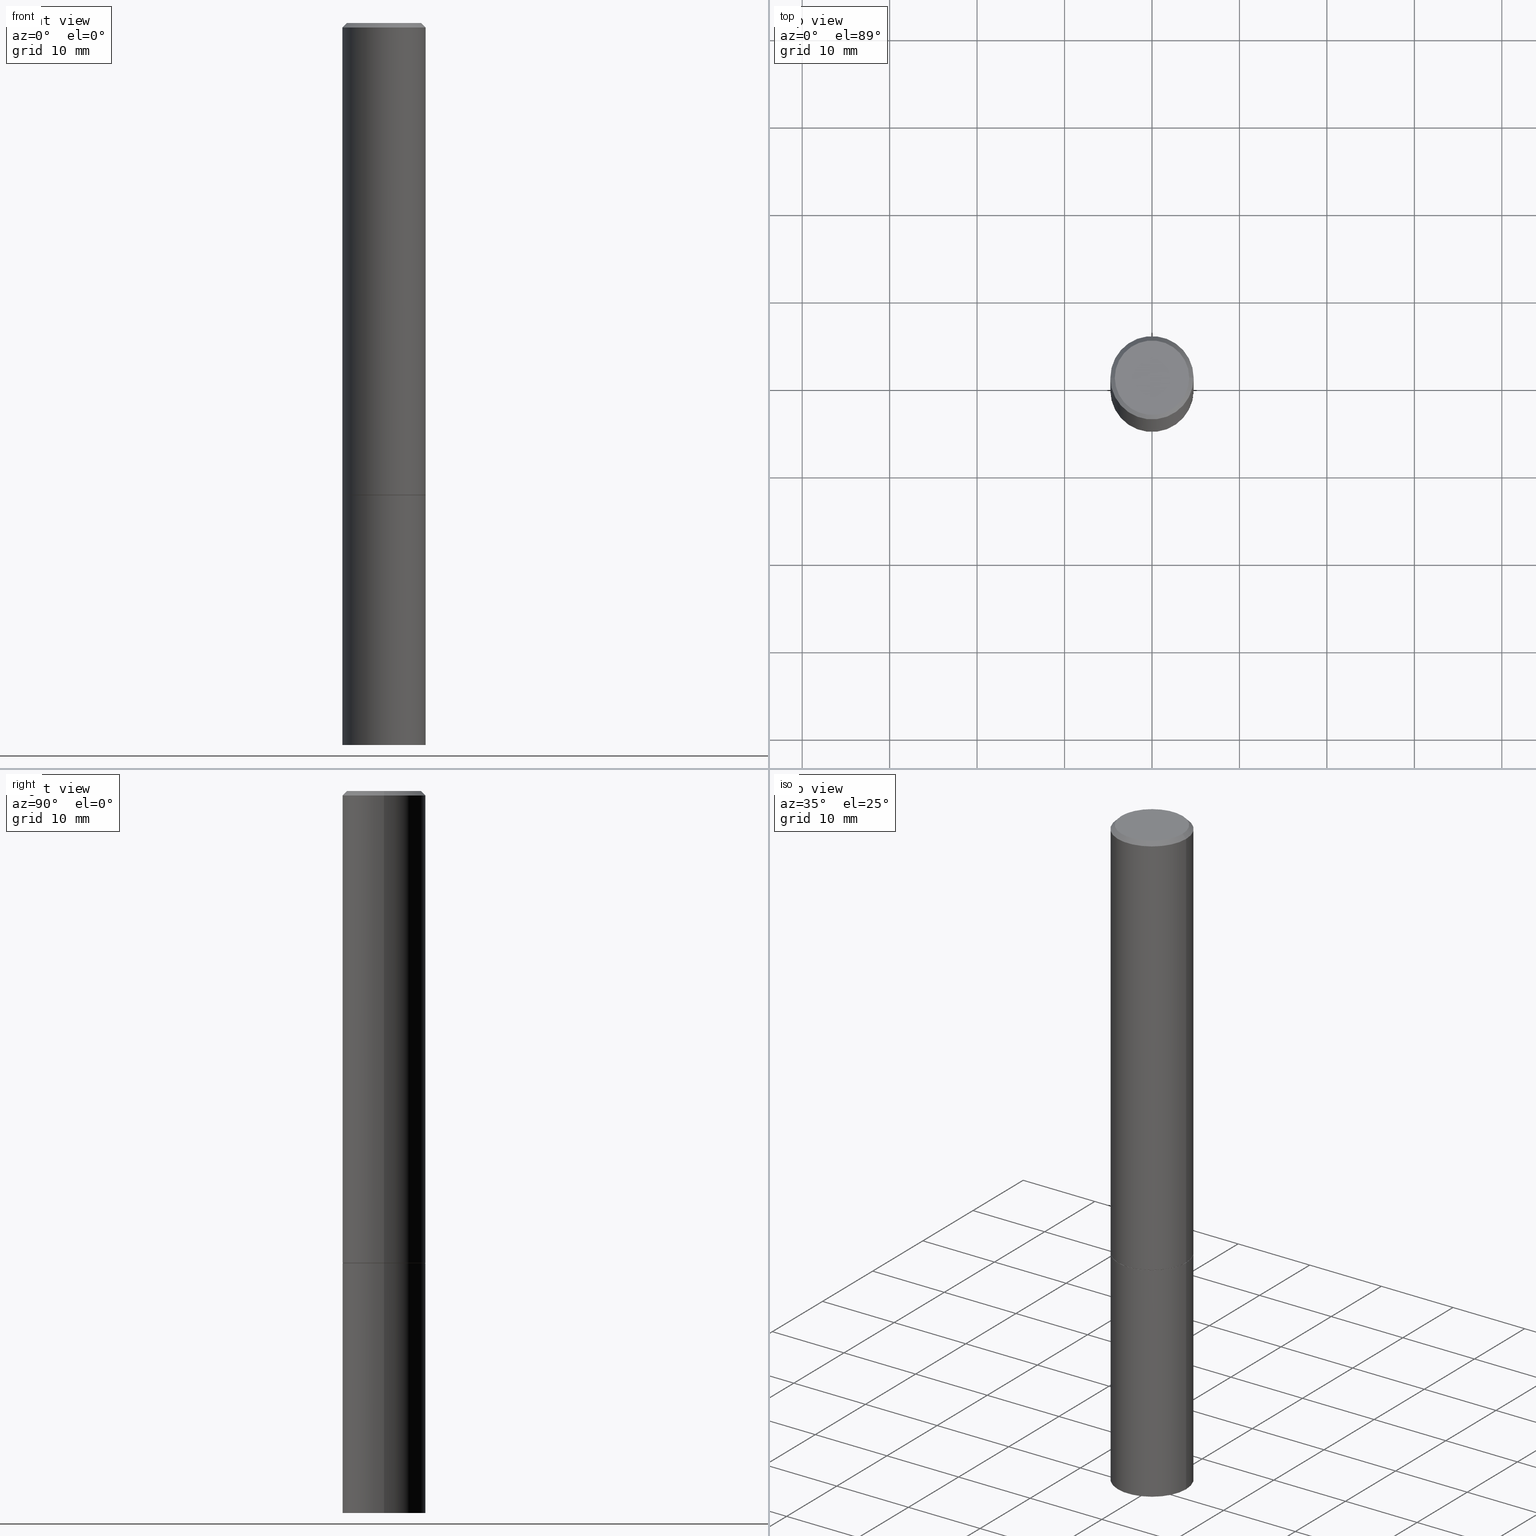
[diagram: canonical four-view strip — front | top / right | iso, engineering-drawing reading convention]
A machine part, canonical four-view strip (front | top / right | iso — engineering-drawing reading convention). The complete STEP part file that produces these views, byte-faithful:
ISO-10303-21;
HEADER;
FILE_DESCRIPTION (( 'STEP AP203' ),
    '1' );
FILE_NAME ('77151.STEP',
    '2024-02-29T15:10:58',
    ( '' ),
    ( '' ),
    'SwSTEP 2.0',
    'SolidWorks 2023',
    '' );
FILE_SCHEMA (( 'CONFIG_CONTROL_DESIGN' ));
ENDSEC;

DATA;
#1 = DIRECTION ( 'NONE',  ( -1.000000000000000000, 6.982962677686265133E-15, 0.000000000000000000 ) ) ;
#2 = ORIENTED_EDGE ( 'NONE', *, *, #255, .T. ) ;
#3 = AXIS2_PLACEMENT_3D ( 'NONE', #45, #308, #171 ) ;
#4 = AXIS2_PLACEMENT_3D ( 'NONE', #116, #366, #5 ) ;
#5 = DIRECTION ( 'NONE',  ( 1.000000000000000000, -6.982962677686266711E-15, 0.000000000000000000 ) ) ;
#6 = EDGE_LOOP ( 'NONE', ( #343, #10 ) ) ;
#7 =( NAMED_UNIT ( * ) SI_UNIT ( $, .STERADIAN. ) SOLID_ANGLE_UNIT ( ) );
#8 = VERTEX_POINT ( 'NONE', #74 ) ;
#9 = EDGE_CURVE ( 'NONE', #35, #8, #118, .T. ) ;
#10 = ORIENTED_EDGE ( 'NONE', *, *, #9, .T. ) ;
#11 = AXIS2_PLACEMENT_3D ( 'NONE', #104, #349, #330 ) ;
#12 = CONICAL_SURFACE ( 'NONE', #139, 0.1874999999999997502, 0.7853981633974469467 ) ;
#13 = ORIENTED_EDGE ( 'NONE', *, *, #143, .F. ) ;
#14 = ORIENTED_EDGE ( 'NONE', *, *, #214, .T. ) ;
#15 = DIRECTION ( 'NONE',  ( -2.445468806185136597E-29, 3.491481338843145583E-15, 1.000000000000000000 ) ) ;
#16 = VECTOR ( 'NONE', #299, 39.37007874015748854 ) ;
#17 = EDGE_LOOP ( 'NONE', ( #38, #184, #227, #345 ) ) ;
#18 = CARTESIAN_POINT ( 'NONE',  ( 7.947773620101693940E-29, -1.134731435124022443E-14, -3.250000000000000000 ) ) ;
#19 = CARTESIAN_POINT ( 'NONE',  ( 1.309305502066254683E-15, 0.1874999999999886757, -3.250000000000000444 ) ) ;
#20 = VECTOR ( 'NONE', #339, 39.37007874015748143 ) ;
#21 = DIRECTION ( 'NONE',  ( 1.000000000000000000, -6.982962677686261189E-15, 0.000000000000000000 ) ) ;
#22 = CARTESIAN_POINT ( 'NONE',  ( -0.1874999999999997502, 1.239475875289309935E-15, -0.02000000000000004205 ) ) ;
#23 = EDGE_CURVE ( 'NONE', #8, #173, #106, .T. ) ;
#24 = DIRECTION ( 'NONE',  ( -2.445468806185136597E-29, 3.491481338843145583E-15, 1.000000000000000000 ) ) ;
#25 = PRODUCT_DEFINITION_SHAPE ( 'NONE', 'NONE',  #230 ) ;
#26 = FACE_OUTER_BOUND ( 'NONE', #92, .T. ) ;
#27 = AXIS2_PLACEMENT_3D ( 'NONE', #80, #83, #111 ) ;
#28 = ORIENTED_EDGE ( 'NONE', *, *, #9, .F. ) ;
#29 = PRODUCT ( '77151', '77151', '', ( #58 ) ) ;
#30 = ORIENTED_EDGE ( 'NONE', *, *, #286, .T. ) ;
#31 = EDGE_LOOP ( 'NONE', ( #314, #293, #232, #289 ) ) ;
#32 = EDGE_LOOP ( 'NONE', ( #216, #292 ) ) ;
#33 = AXIS2_PLACEMENT_3D ( 'NONE', #179, #205, #180 ) ;
#34 = DIRECTION ( 'NONE',  ( 2.445468806185136597E-29, -3.491481338843145583E-15, -1.000000000000000000 ) ) ;
#35 = VERTEX_POINT ( 'NONE', #261 ) ;
#36 = CC_DESIGN_PERSON_AND_ORGANIZATION_ASSIGNMENT ( #155, #328, ( #119 ) ) ;
#37 = DATE_AND_TIME ( #268, #164 ) ;
#38 = ORIENTED_EDGE ( 'NONE', *, *, #201, .T. ) ;
#39 = APPROVAL_DATE_TIME ( #37, #167 ) ;
#40 = CARTESIAN_POINT ( 'NONE',  ( 4.890937612370283668E-31, -6.982962677686305168E-17, -0.02000000000000004205 ) ) ;
#41 = COORDINATED_UNIVERSAL_TIME_OFFSET ( 5, 0, .BEHIND. ) ;
#42 = DIRECTION ( 'NONE',  ( 2.445468806185136597E-29, -3.491481338843145583E-15, -1.000000000000000000 ) ) ;
#43 = CARTESIAN_POINT ( 'NONE',  ( 5.196621213143415268E-29, -7.419397845041683624E-15, -2.125000000000000000 ) ) ;
#44 = CIRCLE ( 'NONE', #3, 0.1875000000000000278 ) ;
#45 = CARTESIAN_POINT ( 'NONE',  ( 5.196621213143415268E-29, -7.419397845041683624E-15, -2.125000000000000000 ) ) ;
#46 = CARTESIAN_POINT ( 'NONE',  ( 1.169646248512447820E-15, 0.1674999999999997602, -5.826888680111757675E-16 ) ) ;
#47 = DIRECTION ( 'NONE',  ( -2.445468806185136597E-29, 3.491481338843145583E-15, 1.000000000000000000 ) ) ;
#48 = ADVANCED_FACE ( 'NONE', ( #186 ), #326, .F. ) ;
#49 = DIRECTION ( 'NONE',  ( -2.445468806185136877E-29, 3.491481338843145188E-15, 1.000000000000000000 ) ) ;
#50 = EDGE_CURVE ( 'NONE', #120, #173, #259, .T. ) ;
#51 = FACE_OUTER_BOUND ( 'NONE', #210, .T. ) ;
#52 = APPROVAL_ROLE ( '' ) ;
#53 = AXIS2_PLACEMENT_3D ( 'NONE', #303, #77, #21 ) ;
#54 = CC_DESIGN_APPROVAL ( #109, ( #230 ) ) ;
#55 = VERTEX_POINT ( 'NONE', #323 ) ;
#56 = CYLINDRICAL_SURFACE ( 'NONE', #97, 0.1874999999999998890 ) ;
#57 = VERTEX_POINT ( 'NONE', #126 ) ;
#58 = MECHANICAL_CONTEXT ( 'NONE', #350, 'mechanical' ) ;
#59 = EDGE_LOOP ( 'NONE', ( #282, #182, #150, #131 ) ) ;
#60 = EDGE_CURVE ( 'NONE', #8, #35, #124, .T. ) ;
#61 = CARTESIAN_POINT ( 'NONE',  ( 0.000000000000000000, 0.000000000000000000, 0.000000000000000000 ) ) ;
#62 = ORIENTED_EDGE ( 'NONE', *, *, #130, .F. ) ;
#63 = AXIS2_PLACEMENT_3D ( 'NONE', #360, #170, #168 ) ;
#64 =( GEOMETRIC_REPRESENTATION_CONTEXT ( 3 ) GLOBAL_UNCERTAINTY_ASSIGNED_CONTEXT ( ( #265 ) ) GLOBAL_UNIT_ASSIGNED_CONTEXT ( ( #344, #115, #7 ) ) REPRESENTATION_CONTEXT ( 'NONE', 'WORKASPACE' ) );
#65 = DATE_TIME_ROLE ( 'creation_date' ) ;
#66 = LINE ( 'NONE', #357, #342 ) ;
#67 = PERSON_AND_ORGANIZATION_ROLE ( 'creator' ) ;
#68 = ORIENTED_EDGE ( 'NONE', *, *, #189, .T. ) ;
#69 = PERSON_AND_ORGANIZATION ( #331, #307 ) ;
#70 = ORIENTED_EDGE ( 'NONE', *, *, #138, .T. ) ;
#71 = AXIS2_PLACEMENT_3D ( 'NONE', #175, #313, #203 ) ;
#72 = AXIS2_PLACEMENT_3D ( 'NONE', #61, #142, #309 ) ;
#73 = COORDINATED_UNIVERSAL_TIME_OFFSET ( 5, 0, .BEHIND. ) ;
#74 = CARTESIAN_POINT ( 'NONE',  ( -0.1674999999999997602, 1.204561061900878878E-15, 4.268512490092109750E-18 ) ) ;
#75 = LINE ( 'NONE', #192, #16 ) ;
#76 = CC_DESIGN_PERSON_AND_ORGANIZATION_ASSIGNMENT ( #234, #325, ( #272 ) ) ;
#77 = DIRECTION ( 'NONE',  ( -2.445468806185136597E-29, 3.491481338843145583E-15, 1.000000000000000000 ) ) ;
#78 = ADVANCED_FACE ( 'NONE', ( #99 ), #89, .T. ) ;
#79 = CC_DESIGN_SECURITY_CLASSIFICATION ( #119, ( #272 ) ) ;
#80 = CARTESIAN_POINT ( 'NONE',  ( 5.194175744337229665E-29, -7.415906363702840616E-15, -2.123999999999999666 ) ) ;
#81 = DIRECTION ( 'NONE',  ( -2.445468806185136597E-29, 3.491481338843145583E-15, 1.000000000000000000 ) ) ;
#82 = ADVANCED_FACE ( 'NONE', ( #321 ), #219, .T. ) ;
#83 = DIRECTION ( 'NONE',  ( -2.445468806185136597E-29, 3.491481338843145583E-15, 1.000000000000000000 ) ) ;
#84 = LOCAL_TIME ( 10, 10, 58.00000000000000000, #73 ) ;
#85 = FACE_OUTER_BOUND ( 'NONE', #32, .T. ) ;
#86 = APPROVAL_STATUS ( 'not_yet_approved' ) ;
#87 = PERSON_AND_ORGANIZATION ( #331, #307 ) ;
#88 = DIRECTION ( 'NONE',  ( 1.000000000000000000, -6.982962677686265922E-15, 4.876176775795935793E-29 ) ) ;
#89 = CONICAL_SURFACE ( 'NONE', #174, 0.1874999999999997502, 0.7853981633974469467 ) ;
#90 = ORIENTED_EDGE ( 'NONE', *, *, #223, .F. ) ;
#91 = DIRECTION ( 'NONE',  ( -2.445468806185136597E-29, 3.491481338843145583E-15, 1.000000000000000000 ) ) ;
#92 = EDGE_LOOP ( 'NONE', ( #256, #127, #141, #14 ) ) ;
#93 = APPROVAL ( #346, 'UNSPECIFIED' ) ;
#94 = PERSON_AND_ORGANIZATION_ROLE ( 'design_owner' ) ;
#95 = ORIENTED_EDGE ( 'NONE', *, *, #352, .T. ) ;
#96 = CIRCLE ( 'NONE', #290, 0.1864999999999999714 ) ;
#97 = AXIS2_PLACEMENT_3D ( 'NONE', #149, #117, #177 ) ;
#98 = DIRECTION ( 'NONE',  ( -2.445468806185136597E-29, 3.491481338843145583E-15, 1.000000000000000000 ) ) ;
#99 = FACE_OUTER_BOUND ( 'NONE', #204, .T. ) ;
#100 = ADVANCED_BREP_SHAPE_REPRESENTATION ( '77151', ( #336, #211, #72 ), #64 ) ;
#101 = DIRECTION ( 'NONE',  ( -2.445468806185136597E-29, 3.491481338843145583E-15, 1.000000000000000000 ) ) ;
#102 = AXIS2_PLACEMENT_3D ( 'NONE', #237, #15, #128 ) ;
#103 = DIMENSIONAL_EXPONENTS ( 1.000000000000000000, 0.000000000000000000, 0.000000000000000000, 0.000000000000000000, 0.000000000000000000, 0.000000000000000000, 0.000000000000000000 ) ;
#104 = CARTESIAN_POINT ( 'NONE',  ( 4.890937612370283668E-31, -6.982962677686305168E-17, -0.02000000000000004205 ) ) ;
#105 = EDGE_CURVE ( 'NONE', #258, #238, #96, .T. ) ;
#106 = LINE ( 'NONE', #188, #181 ) ;
#107 = DIRECTION ( 'NONE',  ( -2.445468806185136877E-29, 3.491481338843145188E-15, 1.000000000000000000 ) ) ;
#108 = DIRECTION ( 'NONE',  ( 1.000000000000000000, -6.982962677686261189E-15, 0.000000000000000000 ) ) ;
#109 = APPROVAL ( #86, 'UNSPECIFIED' ) ;
#110 = CARTESIAN_POINT ( 'NONE',  ( 0.1864999999999999714, -8.721720384430172617E-15, -2.125000000000000000 ) ) ;
#111 = DIRECTION ( 'NONE',  ( 1.000000000000000000, -6.982962677686266711E-15, 0.000000000000000000 ) ) ;
#112 = AXIS2_PLACEMENT_3D ( 'NONE', #275, #24, #197 ) ;
#113 = APPROVAL_PERSON_ORGANIZATION ( #263, #93, #257 ) ;
#114 = CYLINDRICAL_SURFACE ( 'NONE', #169, 0.1875000000000000278 ) ;
#115 =( NAMED_UNIT ( * ) PLANE_ANGLE_UNIT ( ) SI_UNIT ( $, .RADIAN. ) );
#116 = CARTESIAN_POINT ( 'NONE',  ( 5.194175744337229665E-29, -7.415906363702840616E-15, -2.123999999999999666 ) ) ;
#117 = DIRECTION ( 'NONE',  ( -2.445468806185136597E-29, 3.491481338843145583E-15, 1.000000000000000000 ) ) ;
#118 = CIRCLE ( 'NONE', #270, 0.1674999999999997602 ) ;
#119 = SECURITY_CLASSIFICATION ( '', '', #185 ) ;
#120 = VERTEX_POINT ( 'NONE', #355 ) ;
#121 = EDGE_CURVE ( 'NONE', #258, #57, #75, .T. ) ;
#122 = EDGE_LOOP ( 'NONE', ( #68, #30 ) ) ;
#123 = ORIENTED_EDGE ( 'NONE', *, *, #286, .F. ) ;
#124 = CIRCLE ( 'NONE', #134, 0.1674999999999997602 ) ;
#125 = DIRECTION ( 'NONE',  ( 2.438088387897960049E-29, -3.491481338843145188E-15, -1.000000000000000000 ) ) ;
#126 = CARTESIAN_POINT ( 'NONE',  ( -0.1875000000000000278, -2.410600365689662531E-15, -2.123999999999999666 ) ) ;
#127 = ORIENTED_EDGE ( 'NONE', *, *, #60, .F. ) ;
#128 = DIRECTION ( 'NONE',  ( 1.000000000000000000, -6.982962677686269077E-15, 0.000000000000000000 ) ) ;
#129 = AXIS2_PLACEMENT_3D ( 'NONE', #264, #125, #235 ) ;
#130 = EDGE_CURVE ( 'NONE', #238, #258, #224, .T. ) ;
#131 = ORIENTED_EDGE ( 'NONE', *, *, #199, .F. ) ;
#132 = CARTESIAN_POINT ( 'NONE',  ( -0.1875000000000000278, 1.332267629550188046E-15, -9.223003294227947991E-30 ) ) ;
#133 = FACE_OUTER_BOUND ( 'NONE', #17, .T. ) ;
#134 = AXIS2_PLACEMENT_3D ( 'NONE', #217, #347, #297 ) ;
#135 = CARTESIAN_POINT ( 'NONE',  ( 0.1874999999999997502, -1.356173001359023494E-15, -0.02000000000000004205 ) ) ;
#136 = CARTESIAN_POINT ( 'NONE',  ( 0.1875000000000000278, -1.265661985330639786E-14, -3.250000000000000000 ) ) ;
#137 = DIRECTION ( 'NONE',  ( -1.000000000000000000, 6.982962677686265922E-15, -4.876176775795935793E-29 ) ) ;
#138 = EDGE_CURVE ( 'NONE', #57, #173, #66, .T. ) ;
#139 = AXIS2_PLACEMENT_3D ( 'NONE', #140, #34, #1 ) ;
#140 = CARTESIAN_POINT ( 'NONE',  ( 4.890937612370283668E-31, -6.982962677686305168E-17, -0.02000000000000004205 ) ) ;
#141 = ORIENTED_EDGE ( 'NONE', *, *, #23, .T. ) ;
#142 = DIRECTION ( 'NONE',  ( 0.000000000000000000, 0.000000000000000000, 1.000000000000000000 ) ) ;
#143 = EDGE_CURVE ( 'NONE', #55, #120, #361, .T. ) ;
#144 = FACE_OUTER_BOUND ( 'NONE', #295, .T. ) ;
#145 = ORIENTED_EDGE ( 'NONE', *, *, #50, .F. ) ;
#146 = APPLICATION_PROTOCOL_DEFINITION ( 'international standard', 'config_control_design', 1994, #222 ) ;
#147 = CONICAL_SURFACE ( 'NONE', #33, 0.1864999999999999714, 0.7853981633974311816 ) ;
#148 = ORIENTED_EDGE ( 'NONE', *, *, #254, .T. ) ;
#149 = CARTESIAN_POINT ( 'NONE',  ( 0.000000000000000000, 0.000000000000000000, 0.000000000000000000 ) ) ;
#150 = ORIENTED_EDGE ( 'NONE', *, *, #352, .F. ) ;
#151 = APPROVAL_ROLE ( '' ) ;
#152 = ORIENTED_EDGE ( 'NONE', *, *, #247, .T. ) ;
#153 = DATE_TIME_ROLE ( 'classification_date' ) ;
#154 = CARTESIAN_POINT ( 'NONE',  ( -1.043851414335219820E-46, 1.490343170380447200E-32, 4.268512490100411279E-18 ) ) ;
#155 = PERSON_AND_ORGANIZATION ( #331, #307 ) ;
#156 = ORIENTED_EDGE ( 'NONE', *, *, #105, .F. ) ;
#157 = APPROVAL_STATUS ( 'not_yet_approved' ) ;
#158 = ADVANCED_FACE ( 'NONE', ( #51 ), #193, .T. ) ;
#159 = ORIENTED_EDGE ( 'NONE', *, *, #138, .F. ) ;
#160 = COORDINATED_UNIVERSAL_TIME_OFFSET ( 5, 0, .BEHIND. ) ;
#161 = DIRECTION ( 'NONE',  ( -2.445468806185136597E-29, 3.491481338843145583E-15, 1.000000000000000000 ) ) ;
#162 = VECTOR ( 'NONE', #107, 39.37007874015748143 ) ;
#163 = LOCAL_TIME ( 10, 10, 58.00000000000000000, #228 ) ;
#164 = LOCAL_TIME ( 10, 10, 58.00000000000000000, #41 ) ;
#165 = CARTESIAN_POINT ( 'NONE',  ( -0.1875000000000000278, -8.051088468590765387E-15, -2.125000000000000000 ) ) ;
#166 = CARTESIAN_POINT ( 'NONE',  ( -0.1875000000000000278, -8.051088468590765387E-15, -3.250000000000000000 ) ) ;
#167 = APPROVAL ( #157, 'UNSPECIFIED' ) ;
#168 = DIRECTION ( 'NONE',  ( 1.000000000000000000, -6.982962677686265922E-15, 4.876176775795935793E-29 ) ) ;
#169 = AXIS2_PLACEMENT_3D ( 'NONE', #359, #81, #332 ) ;
#170 = DIRECTION ( 'NONE',  ( -2.445468806185136597E-29, 3.491481338843145583E-15, 1.000000000000000000 ) ) ;
#171 = DIRECTION ( 'NONE',  ( 1.000000000000000000, -6.982962677686266711E-15, 0.000000000000000000 ) ) ;
#172 = FACE_OUTER_BOUND ( 'NONE', #31, .T. ) ;
#173 = VERTEX_POINT ( 'NONE', #22 ) ;
#174 = AXIS2_PLACEMENT_3D ( 'NONE', #40, #42, #267 ) ;
#175 = CARTESIAN_POINT ( 'NONE',  ( 5.196621213143415268E-29, -7.419397845041683624E-15, -2.125000000000000000 ) ) ;
#176 = VERTEX_POINT ( 'NONE', #166 ) ;
#177 = DIRECTION ( 'NONE',  ( 1.000000000000000000, -6.982962677686265922E-15, 4.876176775795935793E-29 ) ) ;
#178 = ORIENTED_EDGE ( 'NONE', *, *, #50, .T. ) ;
#179 = CARTESIAN_POINT ( 'NONE',  ( 5.196621213143415268E-29, -7.419397845041683624E-15, -2.125000000000000000 ) ) ;
#180 = DIRECTION ( 'NONE',  ( 1.000000000000000000, -6.982962677686269077E-15, 0.000000000000000000 ) ) ;
#181 = VECTOR ( 'NONE', #215, 39.37007874015748143 ) ;
#182 = ORIENTED_EDGE ( 'NONE', *, *, #121, .T. ) ;
#183 = APPROVAL_DATE_TIME ( #212, #93 ) ;
#184 = ORIENTED_EDGE ( 'NONE', *, *, #223, .T. ) ;
#185 = SECURITY_CLASSIFICATION_LEVEL ( 'unclassified' ) ;
#186 = FACE_OUTER_BOUND ( 'NONE', #122, .T. ) ;
#187 = DATE_AND_TIME ( #296, #84 ) ;
#188 = CARTESIAN_POINT ( 'NONE',  ( -0.1874999999999997502, 1.239475875289309935E-15, -0.02000000000000004205 ) ) ;
#189 = EDGE_CURVE ( 'NONE', #229, #191, #239, .T. ) ;
#190 = DATE_AND_TIME ( #209, #245 ) ;
#191 = VERTEX_POINT ( 'NONE', #165 ) ;
#192 = CARTESIAN_POINT ( 'NONE',  ( -0.1864999999999999714, -6.094235642849095994E-15, -2.125000000000000000 ) ) ;
#193 = CYLINDRICAL_SURFACE ( 'NONE', #63, 0.1875000000000000278 ) ;
#194 = VECTOR ( 'NONE', #277, 39.37007874015748143 ) ;
#195 = PLANE ( 'NONE',  #198 ) ;
#196 = DIRECTION ( 'NONE',  ( -2.445468806185136597E-29, 3.491481338843145583E-15, 1.000000000000000000 ) ) ;
#197 = DIRECTION ( 'NONE',  ( 1.000000000000000000, -6.982962677686266711E-15, 0.000000000000000000 ) ) ;
#198 = AXIS2_PLACEMENT_3D ( 'NONE', #46, #364, #221 ) ;
#199 = EDGE_CURVE ( 'NONE', #238, #55, #243, .T. ) ;
#200 = PLANE ( 'NONE',  #233 ) ;
#201 = EDGE_CURVE ( 'NONE', #213, #176, #208, .T. ) ;
#202 = EDGE_LOOP ( 'NONE', ( #62, #156 ) ) ;
#203 = DIRECTION ( 'NONE',  ( 1.000000000000000000, -6.982962677686265922E-15, 4.876176775795935793E-29 ) ) ;
#204 = EDGE_LOOP ( 'NONE', ( #28, #2, #178, #207 ) ) ;
#205 = DIRECTION ( 'NONE',  ( -2.445468806185136597E-29, 3.491481338843145583E-15, 1.000000000000000000 ) ) ;
#206 = DATE_AND_TIME ( #283, #163 ) ;
#207 = ORIENTED_EDGE ( 'NONE', *, *, #23, .F. ) ;
#208 = CIRCLE ( 'NONE', #252, 0.1875000000000000278 ) ;
#209 = CALENDAR_DATE ( 2024, 29, 2 ) ;
#210 = EDGE_LOOP ( 'NONE', ( #90, #148, #316, #123 ) ) ;
#211 = MANIFOLD_SOLID_BREP ( 'Body-Move/Copy2[2]', #365 ) ;
#212 = DATE_AND_TIME ( #294, #301 ) ;
#213 = VERTEX_POINT ( 'NONE', #136 ) ;
#214 = EDGE_CURVE ( 'NONE', #173, #120, #317, .T. ) ;
#215 = DIRECTION ( 'NONE',  ( -0.7071067811865465735, 2.468850131082246805E-15, -0.7071067811865484609 ) ) ;
#216 = ORIENTED_EDGE ( 'NONE', *, *, #201, .F. ) ;
#217 = CARTESIAN_POINT ( 'NONE',  ( -1.043851414335219820E-46, 1.490343170380447200E-32, 4.268512490100411279E-18 ) ) ;
#218 = DIRECTION ( 'NONE',  ( 2.438088387897960049E-29, -3.491481338843145188E-15, -1.000000000000000000 ) ) ;
#219 = CONICAL_SURFACE ( 'NONE', #102, 0.1864999999999999714, 0.7853981633974311816 ) ;
#220 = AXIS2_PLACEMENT_3D ( 'NONE', #291, #91, #88 ) ;
#221 = DIRECTION ( 'NONE',  ( -1.000000000000000000, 6.982962677686265922E-15, -4.876176775795935793E-29 ) ) ;
#222 = APPLICATION_CONTEXT ( 'configuration controlled 3d designs of mechanical parts and assemblies' ) ;
#223 = EDGE_CURVE ( 'NONE', #176, #191, #242, .T. ) ;
#224 = CIRCLE ( 'NONE', #324, 0.1864999999999999714 ) ;
#225 = VECTOR ( 'NONE', #335, 39.37007874015748854 ) ;
#226 = APPLICATION_PROTOCOL_DEFINITION ( 'international standard', 'config_control_design', 1994, #350 ) ;
#227 = ORIENTED_EDGE ( 'NONE', *, *, #189, .F. ) ;
#228 = COORDINATED_UNIVERSAL_TIME_OFFSET ( 5, 0, .BEHIND. ) ;
#229 = VERTEX_POINT ( 'NONE', #304 ) ;
#230 = PRODUCT_DEFINITION ( 'UNKNOWN', '', #272, #348 ) ;
#231 = CC_DESIGN_PERSON_AND_ORGANIZATION_ASSIGNMENT ( #315, #67, ( #230 ) ) ;
#232 = ORIENTED_EDGE ( 'NONE', *, *, #199, .T. ) ;
#233 = AXIS2_PLACEMENT_3D ( 'NONE', #19, #218, #137 ) ;
#234 = PERSON_AND_ORGANIZATION ( #331, #307 ) ;
#235 = DIRECTION ( 'NONE',  ( -1.000000000000000000, 6.982962677686265922E-15, -4.876176775795935793E-29 ) ) ;
#236 = PERSON_AND_ORGANIZATION_ROLE ( 'creator' ) ;
#237 = CARTESIAN_POINT ( 'NONE',  ( 5.196621213143415268E-29, -7.419397845041683624E-15, -2.125000000000000000 ) ) ;
#238 = VERTEX_POINT ( 'NONE', #110 ) ;
#239 = CIRCLE ( 'NONE', #112, 0.1875000000000000278 ) ;
#240 = DIRECTION ( 'NONE',  ( 1.000000000000000000, -6.982962677686269077E-15, 0.000000000000000000 ) ) ;
#241 = DIRECTION ( 'NONE',  ( 1.000000000000000000, -6.982962677686265922E-15, 4.875936752492899929E-29 ) ) ;
#242 = LINE ( 'NONE', #132, #194 ) ;
#243 = LINE ( 'NONE', #302, #225 ) ;
#244 = CLOSED_SHELL ( 'NONE', ( #298, #278, #48, #158 ) ) ;
#245 = LOCAL_TIME ( 10, 10, 58.00000000000000000, #322 ) ;
#246 = LINE ( 'NONE', #276, #162 ) ;
#247 = EDGE_CURVE ( 'NONE', #57, #55, #354, .T. ) ;
#248 = LINE ( 'NONE', #135, #20 ) ;
#249 = DIRECTION ( 'NONE',  ( 1.000000000000000000, -6.982962677686265133E-15, 0.000000000000000000 ) ) ;
#250 =( LENGTH_UNIT ( ) NAMED_UNIT ( * ) SI_UNIT ( $, .METRE. ) );
#251 = APPROVAL_DATE_TIME ( #206, #109 ) ;
#252 = AXIS2_PLACEMENT_3D ( 'NONE', #18, #47, #108 ) ;
#253 = PERSON_AND_ORGANIZATION ( #331, #307 ) ;
#254 = EDGE_CURVE ( 'NONE', #176, #213, #358, .T. ) ;
#255 = EDGE_CURVE ( 'NONE', #35, #120, #248, .T. ) ;
#256 = ORIENTED_EDGE ( 'NONE', *, *, #255, .F. ) ;
#257 = APPROVAL_ROLE ( '' ) ;
#258 = VERTEX_POINT ( 'NONE', #337 ) ;
#259 = CIRCLE ( 'NONE', #11, 0.1874999999999997502 ) ;
#260 = CC_DESIGN_APPROVAL ( #167, ( #119 ) ) ;
#261 = CARTESIAN_POINT ( 'NONE',  ( 0.1674999999999997602, -1.252653207992876711E-15, 4.268512490108880748E-18 ) ) ;
#262 = PRODUCT_RELATED_PRODUCT_CATEGORY ( 'detail', '', ( #29 ) ) ;
#263 = PERSON_AND_ORGANIZATION ( #331, #307 ) ;
#264 = CARTESIAN_POINT ( 'NONE',  ( 1.309305502066226876E-15, 0.1874999999999926170, -2.125000000000000444 ) ) ;
#265 = UNCERTAINTY_MEASURE_WITH_UNIT (LENGTH_MEASURE( 1.000000000000000082E-05 ), #344, 'distance_accuracy_value', 'NONE');
#266 = SHAPE_DEFINITION_REPRESENTATION ( #25, #100 ) ;
#267 = DIRECTION ( 'NONE',  ( -1.000000000000000000, 6.982962677686265133E-15, 0.000000000000000000 ) ) ;
#268 = CALENDAR_DATE ( 2024, 29, 2 ) ;
#269 = VECTOR ( 'NONE', #279, 39.37007874015748143 ) ;
#270 = AXIS2_PLACEMENT_3D ( 'NONE', #154, #101, #241 ) ;
#271 = DIRECTION ( 'NONE',  ( 1.000000000000000000, -6.982962677686269077E-15, 0.000000000000000000 ) ) ;
#272 = PRODUCT_DEFINITION_FORMATION_WITH_SPECIFIED_SOURCE ( 'ANY', '', #29, .NOT_KNOWN. ) ;
#273 = CC_DESIGN_DATE_AND_TIME_ASSIGNMENT ( #187, #153, ( #119 ) ) ;
#274 = EDGE_CURVE ( 'NONE', #213, #229, #246, .T. ) ;
#275 = CARTESIAN_POINT ( 'NONE',  ( 5.196621213143415268E-29, -7.419397845041683624E-15, -2.125000000000000000 ) ) ;
#276 = CARTESIAN_POINT ( 'NONE',  ( 0.1875000000000000278, -1.309305502066175008E-15, 9.142831454617381013E-30 ) ) ;
#277 = DIRECTION ( 'NONE',  ( -2.445468806185136877E-29, 3.491481338843145188E-15, 1.000000000000000000 ) ) ;
#278 = ADVANCED_FACE ( 'NONE', ( #85 ), #200, .T. ) ;
#279 = DIRECTION ( 'NONE',  ( -2.445468806185136877E-29, 3.491481338843145188E-15, 1.000000000000000000 ) ) ;
#280 = FACE_OUTER_BOUND ( 'NONE', #6, .T. ) ;
#281 = CYLINDRICAL_SURFACE ( 'NONE', #220, 0.1874999999999998890 ) ;
#282 = ORIENTED_EDGE ( 'NONE', *, *, #130, .T. ) ;
#283 = CALENDAR_DATE ( 2024, 29, 2 ) ;
#284 = LENGTH_MEASURE_WITH_UNIT ( LENGTH_MEASURE( 0.02539999999999999897 ), #250 );
#285 = EDGE_LOOP ( 'NONE', ( #159, #152, #351, #310 ) ) ;
#286 = EDGE_CURVE ( 'NONE', #191, #229, #44, .T. ) ;
#287 = FACE_OUTER_BOUND ( 'NONE', #285, .T. ) ;
#288 = ADVANCED_FACE ( 'NONE', ( #280 ), #195, .F. ) ;
#289 = ORIENTED_EDGE ( 'NONE', *, *, #247, .F. ) ;
#290 = AXIS2_PLACEMENT_3D ( 'NONE', #356, #98, #240 ) ;
#291 = CARTESIAN_POINT ( 'NONE',  ( 0.000000000000000000, 0.000000000000000000, 0.000000000000000000 ) ) ;
#292 = ORIENTED_EDGE ( 'NONE', *, *, #254, .F. ) ;
#293 = ORIENTED_EDGE ( 'NONE', *, *, #105, .T. ) ;
#294 = CALENDAR_DATE ( 2024, 29, 2 ) ;
#295 = EDGE_LOOP ( 'NONE', ( #95, #70, #145, #13 ) ) ;
#296 = CALENDAR_DATE ( 2024, 29, 2 ) ;
#297 = DIRECTION ( 'NONE',  ( 1.000000000000000000, -6.982962677686265922E-15, 4.875936752492899929E-29 ) ) ;
#298 = ADVANCED_FACE ( 'NONE', ( #133 ), #114, .T. ) ;
#299 = DIRECTION ( 'NONE',  ( -0.7071067811865353603, 7.493145998870309984E-15, 0.7071067811865595631 ) ) ;
#300 = CC_DESIGN_PERSON_AND_ORGANIZATION_ASSIGNMENT ( #87, #94, ( #29 ) ) ;
#301 = LOCAL_TIME ( 10, 10, 58.00000000000000000, #160 ) ;
#302 = CARTESIAN_POINT ( 'NONE',  ( 0.1864999999999999714, -8.721720384430172617E-15, -2.125000000000000000 ) ) ;
#303 = CARTESIAN_POINT ( 'NONE',  ( 7.947773620101693940E-29, -1.134731435124022443E-14, -3.250000000000000000 ) ) ;
#304 = CARTESIAN_POINT ( 'NONE',  ( 0.1875000000000000278, -8.728703347107858632E-15, -2.125000000000000000 ) ) ;
#305 = CARTESIAN_POINT ( 'NONE',  ( 0.1874999999999998890, -1.309305502066174022E-15, 9.142831454617374006E-30 ) ) ;
#306 = CIRCLE ( 'NONE', #4, 0.1875000000000000278 ) ;
#307 = ORGANIZATION ( 'UNSPECIFIED', 'UNSPECIFIED', '' ) ;
#308 = DIRECTION ( 'NONE',  ( -2.445468806185136597E-29, 3.491481338843145583E-15, 1.000000000000000000 ) ) ;
#309 = DIRECTION ( 'NONE',  ( 1.000000000000000000, 0.000000000000000000, 0.000000000000000000 ) ) ;
#310 = ORIENTED_EDGE ( 'NONE', *, *, #214, .F. ) ;
#311 = PLANE ( 'NONE',  #71 ) ;
#312 = ADVANCED_FACE ( 'NONE', ( #341 ), #311, .F. ) ;
#313 = DIRECTION ( 'NONE',  ( -2.438088387897960049E-29, 3.491481338843145188E-15, 1.000000000000000000 ) ) ;
#314 = ORIENTED_EDGE ( 'NONE', *, *, #121, .F. ) ;
#315 = PERSON_AND_ORGANIZATION ( #331, #307 ) ;
#316 = ORIENTED_EDGE ( 'NONE', *, *, #274, .T. ) ;
#317 = CIRCLE ( 'NONE', #333, 0.1874999999999997502 ) ;
#318 = APPROVAL_PERSON_ORGANIZATION ( #320, #167, #151 ) ;
#319 = CC_DESIGN_APPROVAL ( #93, ( #272 ) ) ;
#320 = PERSON_AND_ORGANIZATION ( #331, #307 ) ;
#321 = FACE_OUTER_BOUND ( 'NONE', #59, .T. ) ;
#322 = COORDINATED_UNIVERSAL_TIME_OFFSET ( 5, 0, .BEHIND. ) ;
#323 = CARTESIAN_POINT ( 'NONE',  ( 0.1875000000000000278, -8.725211865769015625E-15, -2.123999999999999666 ) ) ;
#324 = AXIS2_PLACEMENT_3D ( 'NONE', #43, #161, #271 ) ;
#325 = PERSON_AND_ORGANIZATION_ROLE ( 'design_supplier' ) ;
#326 = PLANE ( 'NONE',  #129 ) ;
#327 = CC_DESIGN_PERSON_AND_ORGANIZATION_ASSIGNMENT ( #69, #236, ( #272 ) ) ;
#328 = PERSON_AND_ORGANIZATION_ROLE ( 'classification_officer' ) ;
#329 = ADVANCED_FACE ( 'NONE', ( #172 ), #147, .T. ) ;
#330 = DIRECTION ( 'NONE',  ( 1.000000000000000000, -6.982962677686265133E-15, 0.000000000000000000 ) ) ;
#331 = PERSON ( 'UNSPECIFIED', 'UNSPECIFIED', 'UNSPECIFIED', ('UNSPECIFIED'), ('UNSPECIFIED'), ('UNSPECIFIED') ) ;
#332 = DIRECTION ( 'NONE',  ( 1.000000000000000000, -6.982962677686265922E-15, 4.876176775795935793E-29 ) ) ;
#333 = AXIS2_PLACEMENT_3D ( 'NONE', #338, #196, #249 ) ;
#334 = APPROVAL_PERSON_ORGANIZATION ( #253, #109, #52 ) ;
#335 = DIRECTION ( 'NONE',  ( 0.7071067811865353603, -2.468850131082130054E-15, 0.7071067811865595631 ) ) ;
#336 = MANIFOLD_SOLID_BREP ( 'Body-Move/Copy2[1]', #244 ) ;
#337 = CARTESIAN_POINT ( 'NONE',  ( -0.1864999999999999714, -6.088937188500874381E-15, -2.125000000000000000 ) ) ;
#338 = CARTESIAN_POINT ( 'NONE',  ( 4.890937612370283668E-31, -6.982962677686305168E-17, -0.02000000000000004205 ) ) ;
#339 = DIRECTION ( 'NONE',  ( 0.7071067811865465735, -7.319954787623252890E-15, -0.7071067811865484609 ) ) ;
#340 = CC_DESIGN_DATE_AND_TIME_ASSIGNMENT ( #190, #65, ( #230 ) ) ;
#341 = FACE_OUTER_BOUND ( 'NONE', #202, .T. ) ;
#342 = VECTOR ( 'NONE', #49, 39.37007874015748143 ) ;
#343 = ORIENTED_EDGE ( 'NONE', *, *, #60, .T. ) ;
#344 =( CONVERSION_BASED_UNIT ( 'INCH', #284 ) LENGTH_UNIT ( ) NAMED_UNIT ( #103 ) );
#345 = ORIENTED_EDGE ( 'NONE', *, *, #274, .F. ) ;
#346 = APPROVAL_STATUS ( 'not_yet_approved' ) ;
#347 = DIRECTION ( 'NONE',  ( -2.445468806185136597E-29, 3.491481338843145583E-15, 1.000000000000000000 ) ) ;
#348 = DESIGN_CONTEXT ( 'detailed design', #222, 'design' ) ;
#349 = DIRECTION ( 'NONE',  ( -2.445468806185136597E-29, 3.491481338843145583E-15, 1.000000000000000000 ) ) ;
#350 = APPLICATION_CONTEXT ( 'configuration controlled 3d designs of mechanical parts and assemblies' ) ;
#351 = ORIENTED_EDGE ( 'NONE', *, *, #143, .T. ) ;
#352 = EDGE_CURVE ( 'NONE', #55, #57, #306, .T. ) ;
#353 = ADVANCED_FACE ( 'NONE', ( #144 ), #281, .T. ) ;
#354 = CIRCLE ( 'NONE', #27, 0.1875000000000000278 ) ;
#355 = CARTESIAN_POINT ( 'NONE',  ( 0.1874999999999997502, -1.356173001359023494E-15, -0.02000000000000004205 ) ) ;
#356 = CARTESIAN_POINT ( 'NONE',  ( 5.196621213143415268E-29, -7.419397845041683624E-15, -2.125000000000000000 ) ) ;
#357 = CARTESIAN_POINT ( 'NONE',  ( -0.1874999999999998890, 1.332267629550187060E-15, -9.223003294227942385E-30 ) ) ;
#358 = CIRCLE ( 'NONE', #53, 0.1875000000000000278 ) ;
#359 = CARTESIAN_POINT ( 'NONE',  ( 0.000000000000000000, 0.000000000000000000, 0.000000000000000000 ) ) ;
#360 = CARTESIAN_POINT ( 'NONE',  ( 0.000000000000000000, 0.000000000000000000, 0.000000000000000000 ) ) ;
#361 = LINE ( 'NONE', #305, #269 ) ;
#362 = ADVANCED_FACE ( 'NONE', ( #26 ), #12, .T. ) ;
#363 = ADVANCED_FACE ( 'NONE', ( #287 ), #56, .T. ) ;
#364 = DIRECTION ( 'NONE',  ( 2.438088387897960049E-29, -3.491481338843145188E-15, -1.000000000000000000 ) ) ;
#365 = CLOSED_SHELL ( 'NONE', ( #82, #353, #78, #362, #363, #329, #312, #288 ) ) ;
#366 = DIRECTION ( 'NONE',  ( -2.445468806185136597E-29, 3.491481338843145583E-15, 1.000000000000000000 ) ) ;
ENDSEC;
END-ISO-10303-21;
